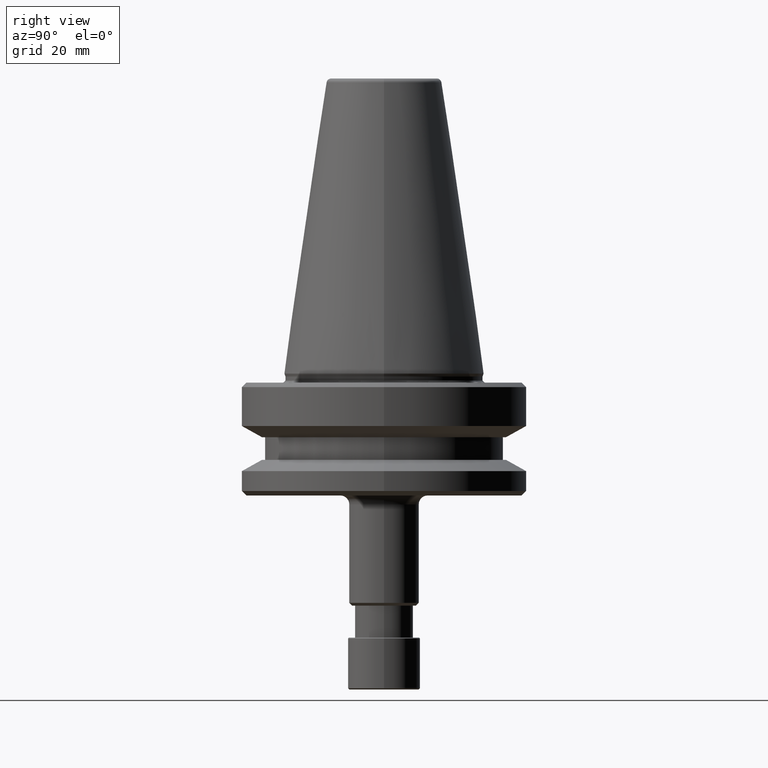
[diagram: clean part render]
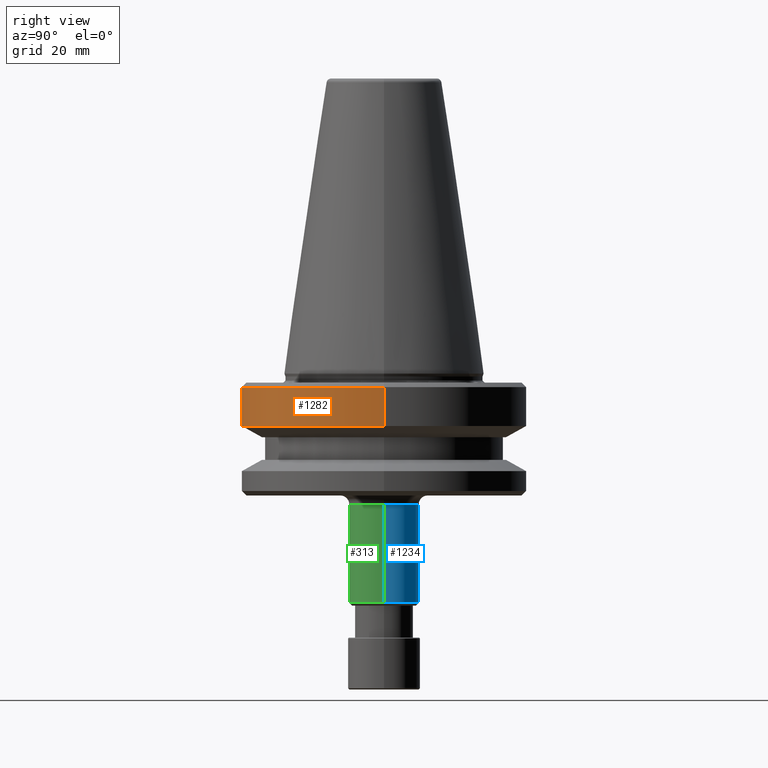
[diagram: same view with three faces highlighted in distinct colors, each labeled with its STEP entity id]
A machine part, right view with three faces highlighted in distinct colors.
Their STEP definitions:

[orange] entity #1282 — the highlighted cylindrical surface (partial cylindrical patch) has radius 31.5 mm, axis along (-0, -0, 1).
#33 = DIRECTION ( 'NONE',  ( -0.0000000000000000000, -0.0000000000000000000, 1.000000000000000000 ) ) ;
#106 = AXIS2_PLACEMENT_3D ( 'NONE', #572, #1286, #612 ) ;
#146 = EDGE_CURVE ( 'NONE', #328, #1044, #891, .T. ) ;
#149 = DIRECTION ( 'NONE',  ( -0.0000000000000000000, -0.0000000000000000000, 1.000000000000000000 ) ) ;
#150 = CARTESIAN_POINT ( 'NONE',  ( 0.0000000000000000000, 0.0000000000000000000, -3.000000000000335700 ) ) ;
#157 = VECTOR ( 'NONE', #962, 1000.000000000000000 ) ;
#174 = CARTESIAN_POINT ( 'NONE',  ( 31.50000000000008500, 0.0000000000000000000, -3.000000000000335700 ) ) ;
#202 = LINE ( 'NONE', #261, #157 ) ;
#255 = DIRECTION ( 'NONE',  ( 1.000000000000000000, 0.0000000000000000000, 0.0000000000000000000 ) ) ;
#261 = CARTESIAN_POINT ( 'NONE',  ( 31.50000000000008500, 0.0000000000000000000, 96.45202497769851400 ) ) ;
#294 = CIRCLE ( 'NONE', #1173, 31.50000000000008500 ) ;
#308 = CYLINDRICAL_SURFACE ( 'NONE', #106, 31.50000000000008500 ) ;
#324 = EDGE_LOOP ( 'NONE', ( #506, #346, #618, #342 ) ) ;
#328 = VERTEX_POINT ( 'NONE', #392 ) ;
#339 = LINE ( 'NONE', #351, #1019 ) ;
#342 = ORIENTED_EDGE ( 'NONE', *, *, #146, .F. ) ;
#346 = ORIENTED_EDGE ( 'NONE', *, *, #696, .T. ) ;
#351 = CARTESIAN_POINT ( 'NONE',  ( -31.50000000000008500, 3.857637417314172900E-015, 96.45202497769851400 ) ) ;
#392 = CARTESIAN_POINT ( 'NONE',  ( -31.50000000000008500, 3.857637417314172900E-015, -3.000000000000335700 ) ) ;
#397 = CARTESIAN_POINT ( 'NONE',  ( -31.50000000000008500, 3.857637417314172900E-015, -11.59985799368334900 ) ) ;
#489 = EDGE_CURVE ( 'NONE', #701, #1044, #202, .T. ) ;
#506 = ORIENTED_EDGE ( 'NONE', *, *, #844, .F. ) ;
#572 = CARTESIAN_POINT ( 'NONE',  ( 0.0000000000000000000, 0.0000000000000000000, 96.45202497769851400 ) ) ;
#612 = DIRECTION ( 'NONE',  ( 1.000000000000000000, 0.0000000000000000000, 0.0000000000000000000 ) ) ;
#618 = ORIENTED_EDGE ( 'NONE', *, *, #489, .T. ) ;
#642 = CARTESIAN_POINT ( 'NONE',  ( 0.0000000000000000000, 0.0000000000000000000, -11.59985799368334900 ) ) ;
#696 = EDGE_CURVE ( 'NONE', #775, #701, #294, .T. ) ;
#698 = FACE_OUTER_BOUND ( 'NONE', #324, .T. ) ;
#701 = VERTEX_POINT ( 'NONE', #1048 ) ;
#746 = DIRECTION ( 'NONE',  ( 1.000000000000000000, 0.0000000000000000000, 0.0000000000000000000 ) ) ;
#775 = VERTEX_POINT ( 'NONE', #397 ) ;
#844 = EDGE_CURVE ( 'NONE', #775, #328, #339, .T. ) ;
#860 = DIRECTION ( 'NONE',  ( -0.0000000000000000000, -0.0000000000000000000, 1.000000000000000000 ) ) ;
#891 = CIRCLE ( 'NONE', #1068, 31.50000000000008500 ) ;
#962 = DIRECTION ( 'NONE',  ( -0.0000000000000000000, -0.0000000000000000000, 1.000000000000000000 ) ) ;
#1019 = VECTOR ( 'NONE', #149, 1000.000000000000000 ) ;
#1044 = VERTEX_POINT ( 'NONE', #174 ) ;
#1048 = CARTESIAN_POINT ( 'NONE',  ( 31.50000000000008500, 0.0000000000000000000, -11.59985799368334900 ) ) ;
#1068 = AXIS2_PLACEMENT_3D ( 'NONE', #150, #860, #255 ) ;
#1173 = AXIS2_PLACEMENT_3D ( 'NONE', #642, #33, #746 ) ;
#1282 = ADVANCED_FACE ( 'NONE', ( #698 ), #308, .T. ) ;
#1286 = DIRECTION ( 'NONE',  ( -0.0000000000000000000, -0.0000000000000000000, 1.000000000000000000 ) ) ;

[blue] entity #1234 — the highlighted cylindrical surface (edge-blend (fillet) strip) has radius 7.75 mm, axis along (-0, -0, 1).
#46 = CIRCLE ( 'NONE', #409, 7.750000000000256700 ) ;
#89 = AXIS2_PLACEMENT_3D ( 'NONE', #1195, #581, #1298 ) ;
#110 = CARTESIAN_POINT ( 'NONE',  ( 7.750000000000256700, 0.0000000000000000000, -50.80000000000038800 ) ) ;
#123 = LINE ( 'NONE', #1145, #311 ) ;
#177 = LINE ( 'NONE', #986, #827 ) ;
#217 = ORIENTED_EDGE ( 'NONE', *, *, #752, .T. ) ;
#289 = VERTEX_POINT ( 'NONE', #458 ) ;
#311 = VECTOR ( 'NONE', #1039, 1000.000000000000000 ) ;
#356 = VERTEX_POINT ( 'NONE', #490 ) ;
#384 = DIRECTION ( 'NONE',  ( -0.0000000000000000000, -0.0000000000000000000, 1.000000000000000000 ) ) ;
#409 = AXIS2_PLACEMENT_3D ( 'NONE', #563, #1277, #671 ) ;
#458 = CARTESIAN_POINT ( 'NONE',  ( -7.750000000000256700, 9.491012693392301400E-016, -50.80000000000038800 ) ) ;
#490 = CARTESIAN_POINT ( 'NONE',  ( -7.750000000000256700, 9.491012693392301400E-016, -28.99999999999923600 ) ) ;
#563 = CARTESIAN_POINT ( 'NONE',  ( 0.0000000000000000000, 0.0000000000000000000, -28.99999999999923600 ) ) ;
#568 = DIRECTION ( 'NONE',  ( -0.0000000000000000000, -0.0000000000000000000, 1.000000000000000000 ) ) ;
#581 = DIRECTION ( 'NONE',  ( -0.0000000000000000000, -0.0000000000000000000, 1.000000000000000000 ) ) ;
#634 = FACE_OUTER_BOUND ( 'NONE', #956, .T. ) ;
#658 = EDGE_CURVE ( 'NONE', #1208, #1207, #123, .T. ) ;
#671 = DIRECTION ( 'NONE',  ( 1.000000000000000000, 0.0000000000000000000, 0.0000000000000000000 ) ) ;
#724 = ORIENTED_EDGE ( 'NONE', *, *, #658, .F. ) ;
#752 = EDGE_CURVE ( 'NONE', #1208, #289, #939, .T. ) ;
#797 = ORIENTED_EDGE ( 'NONE', *, *, #1066, .F. ) ;
#824 = CARTESIAN_POINT ( 'NONE',  ( 7.750000000000256700, 0.0000000000000000000, -28.99999999999923600 ) ) ;
#827 = VECTOR ( 'NONE', #384, 1000.000000000000000 ) ;
#939 = CIRCLE ( 'NONE', #89, 7.750000000000256700 ) ;
#956 = EDGE_LOOP ( 'NONE', ( #217, #1293, #797, #724 ) ) ;
#986 = CARTESIAN_POINT ( 'NONE',  ( -7.750000000000256700, 9.491012693392301400E-016, 96.45202497769851400 ) ) ;
#1039 = DIRECTION ( 'NONE',  ( -0.0000000000000000000, -0.0000000000000000000, 1.000000000000000000 ) ) ;
#1066 = EDGE_CURVE ( 'NONE', #1207, #356, #46, .T. ) ;
#1079 = DIRECTION ( 'NONE',  ( 1.000000000000000000, 0.0000000000000000000, 0.0000000000000000000 ) ) ;
#1093 = EDGE_CURVE ( 'NONE', #289, #356, #177, .T. ) ;
#1145 = CARTESIAN_POINT ( 'NONE',  ( 7.750000000000256700, 0.0000000000000000000, 96.45202497769851400 ) ) ;
#1195 = CARTESIAN_POINT ( 'NONE',  ( 0.0000000000000000000, 0.0000000000000000000, -50.80000000000038800 ) ) ;
#1201 = CYLINDRICAL_SURFACE ( 'NONE', #1257, 7.750000000000256700 ) ;
#1207 = VERTEX_POINT ( 'NONE', #824 ) ;
#1208 = VERTEX_POINT ( 'NONE', #110 ) ;
#1234 = ADVANCED_FACE ( 'NONE', ( #634 ), #1201, .T. ) ;
#1257 = AXIS2_PLACEMENT_3D ( 'NONE', #1280, #568, #1079 ) ;
#1277 = DIRECTION ( 'NONE',  ( -0.0000000000000000000, -0.0000000000000000000, 1.000000000000000000 ) ) ;
#1280 = CARTESIAN_POINT ( 'NONE',  ( 0.0000000000000000000, 0.0000000000000000000, 96.45202497769851400 ) ) ;
#1293 = ORIENTED_EDGE ( 'NONE', *, *, #1093, .T. ) ;
#1298 = DIRECTION ( 'NONE',  ( 1.000000000000000000, 0.0000000000000000000, 0.0000000000000000000 ) ) ;

[green] entity #313 — the highlighted cylindrical surface (edge-blend (fillet) strip) has radius 7.75 mm, axis along (-0, -0, 1).
#72 = EDGE_CURVE ( 'NONE', #289, #1208, #82, .T. ) ;
#77 = AXIS2_PLACEMENT_3D ( 'NONE', #1083, #484, #1183 ) ;
#82 = CIRCLE ( 'NONE', #223, 7.750000000000256700 ) ;
#110 = CARTESIAN_POINT ( 'NONE',  ( 7.750000000000256700, 0.0000000000000000000, -50.80000000000038800 ) ) ;
#123 = LINE ( 'NONE', #1145, #311 ) ;
#177 = LINE ( 'NONE', #986, #827 ) ;
#210 = ORIENTED_EDGE ( 'NONE', *, *, #1253, .F. ) ;
#223 = AXIS2_PLACEMENT_3D ( 'NONE', #402, #1105, #501 ) ;
#260 = EDGE_LOOP ( 'NONE', ( #997, #936, #444, #210 ) ) ;
#289 = VERTEX_POINT ( 'NONE', #458 ) ;
#311 = VECTOR ( 'NONE', #1039, 1000.000000000000000 ) ;
#313 = ADVANCED_FACE ( 'NONE', ( #900 ), #433, .T. ) ;
#356 = VERTEX_POINT ( 'NONE', #490 ) ;
#384 = DIRECTION ( 'NONE',  ( -0.0000000000000000000, -0.0000000000000000000, 1.000000000000000000 ) ) ;
#402 = CARTESIAN_POINT ( 'NONE',  ( 0.0000000000000000000, 0.0000000000000000000, -50.80000000000038800 ) ) ;
#433 = CYLINDRICAL_SURFACE ( 'NONE', #1021, 7.750000000000256700 ) ;
#444 = ORIENTED_EDGE ( 'NONE', *, *, #658, .T. ) ;
#458 = CARTESIAN_POINT ( 'NONE',  ( -7.750000000000256700, 9.491012693392301400E-016, -50.80000000000038800 ) ) ;
#484 = DIRECTION ( 'NONE',  ( -0.0000000000000000000, -0.0000000000000000000, 1.000000000000000000 ) ) ;
#490 = CARTESIAN_POINT ( 'NONE',  ( -7.750000000000256700, 9.491012693392301400E-016, -28.99999999999923600 ) ) ;
#501 = DIRECTION ( 'NONE',  ( 1.000000000000000000, 0.0000000000000000000, 0.0000000000000000000 ) ) ;
#658 = EDGE_CURVE ( 'NONE', #1208, #1207, #123, .T. ) ;
#688 = DIRECTION ( 'NONE',  ( -0.0000000000000000000, -0.0000000000000000000, 1.000000000000000000 ) ) ;
#749 = CIRCLE ( 'NONE', #77, 7.750000000000256700 ) ;
#793 = CARTESIAN_POINT ( 'NONE',  ( 0.0000000000000000000, 0.0000000000000000000, 96.45202497769851400 ) ) ;
#824 = CARTESIAN_POINT ( 'NONE',  ( 7.750000000000256700, 0.0000000000000000000, -28.99999999999923600 ) ) ;
#827 = VECTOR ( 'NONE', #384, 1000.000000000000000 ) ;
#900 = FACE_OUTER_BOUND ( 'NONE', #260, .T. ) ;
#936 = ORIENTED_EDGE ( 'NONE', *, *, #72, .T. ) ;
#986 = CARTESIAN_POINT ( 'NONE',  ( -7.750000000000256700, 9.491012693392301400E-016, 96.45202497769851400 ) ) ;
#997 = ORIENTED_EDGE ( 'NONE', *, *, #1093, .F. ) ;
#1021 = AXIS2_PLACEMENT_3D ( 'NONE', #793, #688, #1189 ) ;
#1039 = DIRECTION ( 'NONE',  ( -0.0000000000000000000, -0.0000000000000000000, 1.000000000000000000 ) ) ;
#1083 = CARTESIAN_POINT ( 'NONE',  ( 0.0000000000000000000, 0.0000000000000000000, -28.99999999999923600 ) ) ;
#1093 = EDGE_CURVE ( 'NONE', #289, #356, #177, .T. ) ;
#1105 = DIRECTION ( 'NONE',  ( -0.0000000000000000000, -0.0000000000000000000, 1.000000000000000000 ) ) ;
#1145 = CARTESIAN_POINT ( 'NONE',  ( 7.750000000000256700, 0.0000000000000000000, 96.45202497769851400 ) ) ;
#1183 = DIRECTION ( 'NONE',  ( 1.000000000000000000, 0.0000000000000000000, 0.0000000000000000000 ) ) ;
#1189 = DIRECTION ( 'NONE',  ( 1.000000000000000000, 0.0000000000000000000, 0.0000000000000000000 ) ) ;
#1207 = VERTEX_POINT ( 'NONE', #824 ) ;
#1208 = VERTEX_POINT ( 'NONE', #110 ) ;
#1253 = EDGE_CURVE ( 'NONE', #356, #1207, #749, .T. ) ;